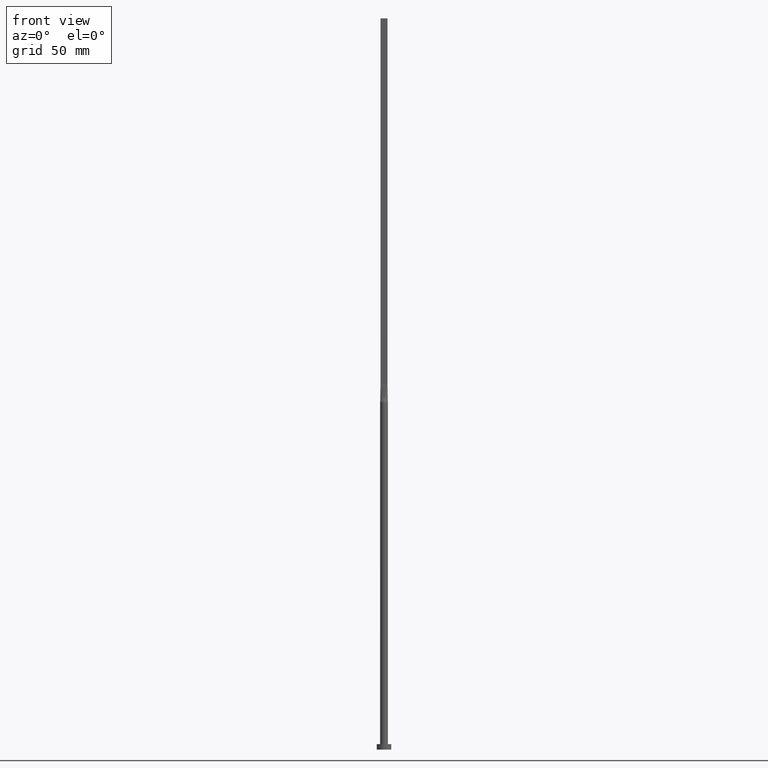
[diagram: clean part render]
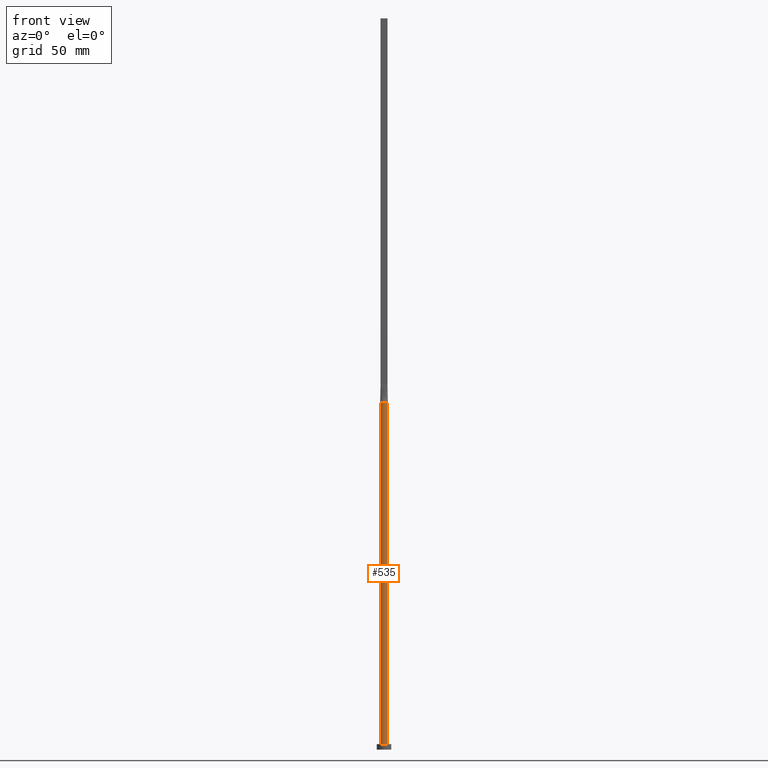
[diagram: same view with one face highlighted and labeled with its STEP entity id]
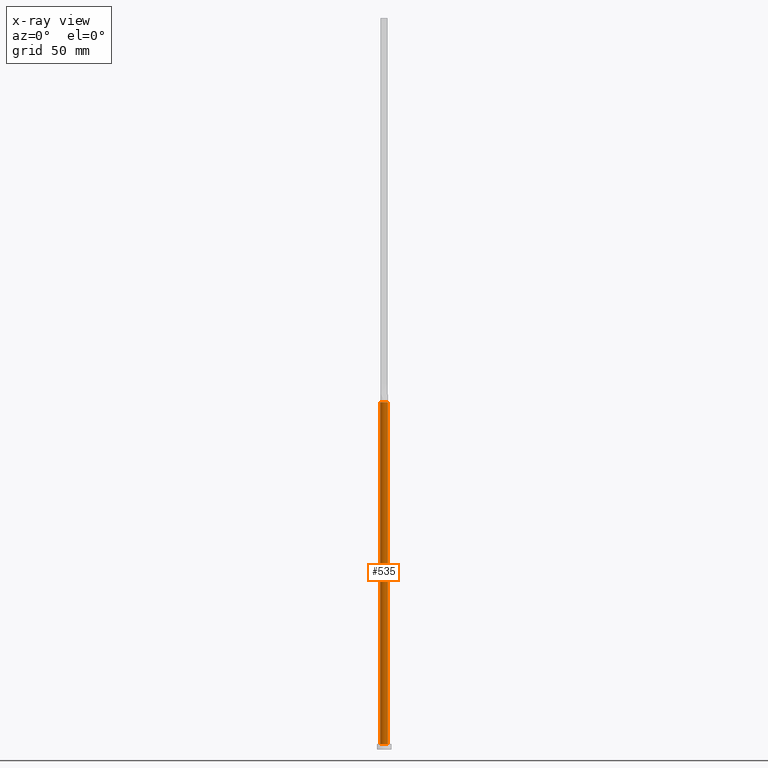
[diagram: x-ray of the same camera — body ghosted, the highlighted face saturated]
A machine part, front view. The second image highlights one B-rep face of the part: STEP entity #535.
The next image is the same camera in x-ray: the body ghosted, the highlighted face saturated — about 0% of this face is hidden behind the body in this view.
In plain terms, the highlighted cylindrical surface (edge-blend (fillet) strip) has radius 2.1 mm, axis along (-0, -0, -1).
Its self-contained STEP definition (entity closure, byte-faithful):
#5 = ORIENTED_EDGE ( 'NONE', *, *, #483, .F. ) ;
#14 = VECTOR ( 'NONE', #33, 1000.000000000000000 ) ;
#16 = CARTESIAN_POINT ( 'NONE',  ( -2.100000000000000089, -1.284268198382905442E-16, 190.0000000000000000 ) ) ;
#31 = CYLINDRICAL_SURFACE ( 'NONE', #466, 2.100000000000000089 ) ;
#32 = DIRECTION ( 'NONE',  ( 0.000000000000000000, 0.000000000000000000, 1.000000000000000000 ) ) ;
#33 = DIRECTION ( 'NONE',  ( -0.000000000000000000, -0.000000000000000000, -1.000000000000000000 ) ) ;
#39 = VERTEX_POINT ( 'NONE', #371 ) ;
#44 = ORIENTED_EDGE ( 'NONE', *, *, #45, .F. ) ;
#45 = EDGE_CURVE ( 'NONE', #39, #557, #373, .T. ) ;
#50 = DIRECTION ( 'NONE',  ( 1.000000000000000000, -1.776356839400250465E-15, 0.000000000000000000 ) ) ;
#53 = AXIS2_PLACEMENT_3D ( 'NONE', #436, #312, #82 ) ;
#77 = LINE ( 'NONE', #250, #14 ) ;
#82 = DIRECTION ( 'NONE',  ( 1.000000000000000000, 0.000000000000000000, 0.000000000000000000 ) ) ;
#98 = DIRECTION ( 'NONE',  ( -0.000000000000000000, -0.000000000000000000, -1.000000000000000000 ) ) ;
#103 = VERTEX_POINT ( 'NONE', #16 ) ;
#106 = ORIENTED_EDGE ( 'NONE', *, *, #328, .F. ) ;
#114 = AXIS2_PLACEMENT_3D ( 'NONE', #411, #192, #50 ) ;
#127 = CARTESIAN_POINT ( 'NONE',  ( 0.000000000000000000, 0.000000000000000000, 190.0000000000000000 ) ) ;
#130 = CARTESIAN_POINT ( 'NONE',  ( 0.000000000000000000, 0.000000000000000000, 3.000000000000000000 ) ) ;
#134 = CIRCLE ( 'NONE', #409, 2.100000000000000089 ) ;
#157 = DIRECTION ( 'NONE',  ( 0.000000000000000000, 0.000000000000000000, 1.000000000000000000 ) ) ;
#166 = DIRECTION ( 'NONE',  ( -0.000000000000000000, -0.000000000000000000, -1.000000000000000000 ) ) ;
#192 = DIRECTION ( 'NONE',  ( 0.000000000000000000, 0.000000000000000000, 1.000000000000000000 ) ) ;
#205 = EDGE_CURVE ( 'NONE', #103, #508, #77, .T. ) ;
#212 = FACE_OUTER_BOUND ( 'NONE', #332, .T. ) ;
#218 = CARTESIAN_POINT ( 'NONE',  ( 2.100000000000000089, 2.571758278209441957E-16, 3.000000000000000000 ) ) ;
#226 = EDGE_CURVE ( 'NONE', #103, #470, #300, .T. ) ;
#244 = AXIS2_PLACEMENT_3D ( 'NONE', #413, #157, #285 ) ;
#250 = CARTESIAN_POINT ( 'NONE',  ( -2.100000000000000089, 0.000000000000000000, 190.0000000000000000 ) ) ;
#285 = DIRECTION ( 'NONE',  ( 1.000000000000000000, 0.000000000000000000, 0.000000000000000000 ) ) ;
#300 = CIRCLE ( 'NONE', #53, 2.100000000000000089 ) ;
#312 = DIRECTION ( 'NONE',  ( 0.000000000000000000, 0.000000000000000000, 1.000000000000000000 ) ) ;
#328 = EDGE_CURVE ( 'NONE', #470, #39, #505, .T. ) ;
#332 = EDGE_LOOP ( 'NONE', ( #5, #44, #106, #578, #542, #514 ) ) ;
#359 = CARTESIAN_POINT ( 'NONE',  ( -2.100000000000000089, 0.000000000000000000, 3.000000000000000000 ) ) ;
#371 = CARTESIAN_POINT ( 'NONE',  ( 2.002626276893244128, -0.6324088233005202841, 190.0000000000000000 ) ) ;
#373 = CIRCLE ( 'NONE', #114, 2.100000000000000089 ) ;
#378 = VECTOR ( 'NONE', #98, 1000.000000000000000 ) ;
#404 = CARTESIAN_POINT ( 'NONE',  ( 2.100000000000000089, 3.372022381799045987E-17, 190.0000000000000000 ) ) ;
#409 = AXIS2_PLACEMENT_3D ( 'NONE', #130, #32, #573 ) ;
#411 = CARTESIAN_POINT ( 'NONE',  ( 0.000000000000000000, 0.000000000000000000, 190.0000000000000000 ) ) ;
#413 = CARTESIAN_POINT ( 'NONE',  ( 0.000000000000000000, 0.000000000000000000, 190.0000000000000000 ) ) ;
#430 = EDGE_CURVE ( 'NONE', #508, #525, #134, .T. ) ;
#436 = CARTESIAN_POINT ( 'NONE',  ( 0.000000000000000000, 0.000000000000000000, 190.0000000000000000 ) ) ;
#462 = LINE ( 'NONE', #507, #378 ) ;
#466 = AXIS2_PLACEMENT_3D ( 'NONE', #127, #166, #534 ) ;
#470 = VERTEX_POINT ( 'NONE', #541 ) ;
#483 = EDGE_CURVE ( 'NONE', #557, #525, #462, .T. ) ;
#505 = CIRCLE ( 'NONE', #244, 2.100000000000000089 ) ;
#507 = CARTESIAN_POINT ( 'NONE',  ( 2.100000000000000089, 2.571758278209441957E-16, 190.0000000000000000 ) ) ;
#508 = VERTEX_POINT ( 'NONE', #359 ) ;
#514 = ORIENTED_EDGE ( 'NONE', *, *, #430, .T. ) ;
#525 = VERTEX_POINT ( 'NONE', #218 ) ;
#534 = DIRECTION ( 'NONE',  ( -1.000000000000000000, 0.000000000000000000, 0.000000000000000000 ) ) ;
#535 = ADVANCED_FACE ( 'NONE', ( #212 ), #31, .T. ) ;
#541 = CARTESIAN_POINT ( 'NONE',  ( -2.002601997802567535, -0.6324010168594718095, 190.0000000000000000 ) ) ;
#542 = ORIENTED_EDGE ( 'NONE', *, *, #205, .T. ) ;
#557 = VERTEX_POINT ( 'NONE', #404 ) ;
#573 = DIRECTION ( 'NONE',  ( 1.000000000000000000, 0.000000000000000000, 0.000000000000000000 ) ) ;
#578 = ORIENTED_EDGE ( 'NONE', *, *, #226, .F. ) ;